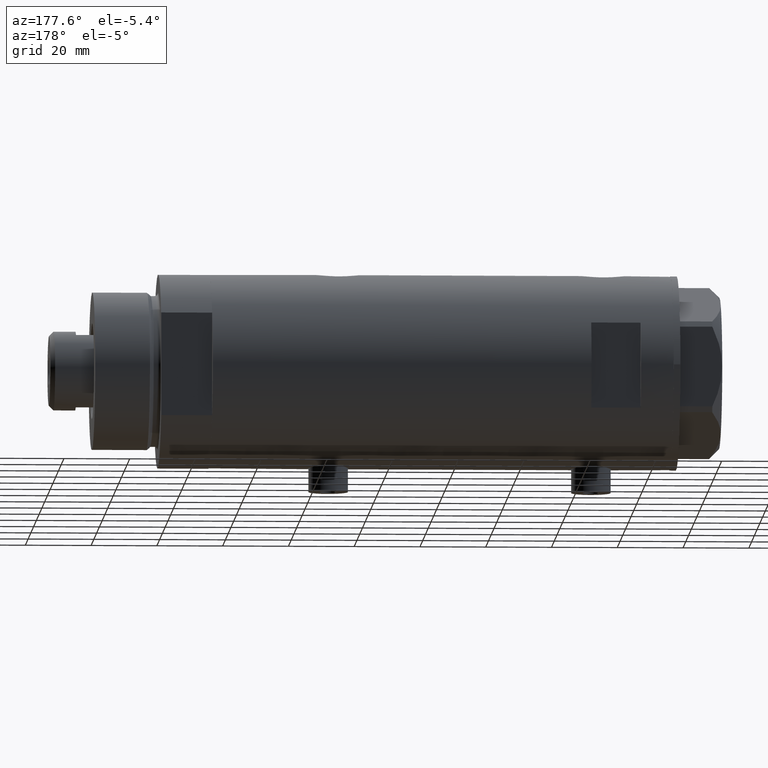
[diagram: clean part render]
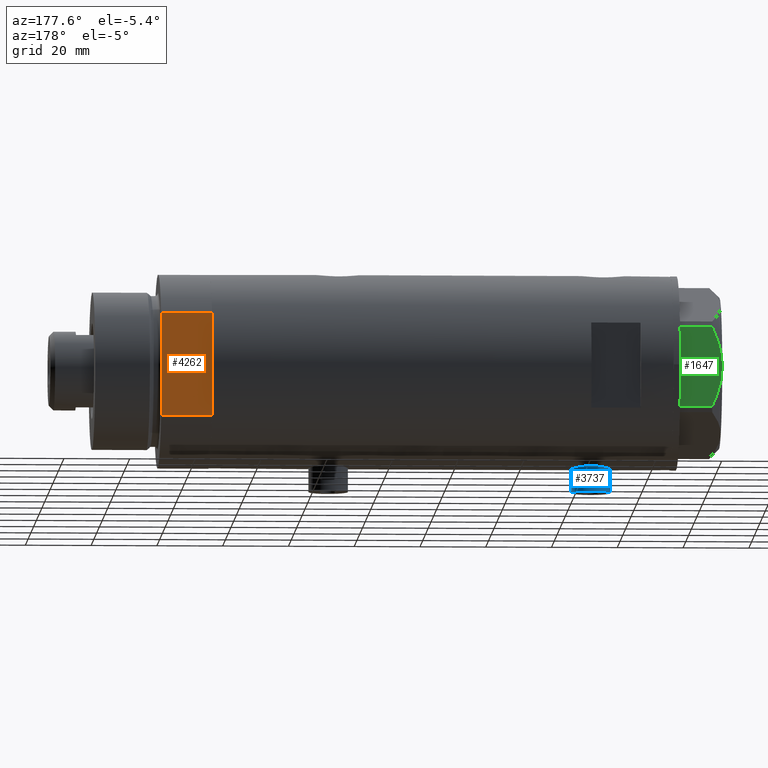
[diagram: same view with three faces highlighted in distinct colors, each labeled with its STEP entity id]
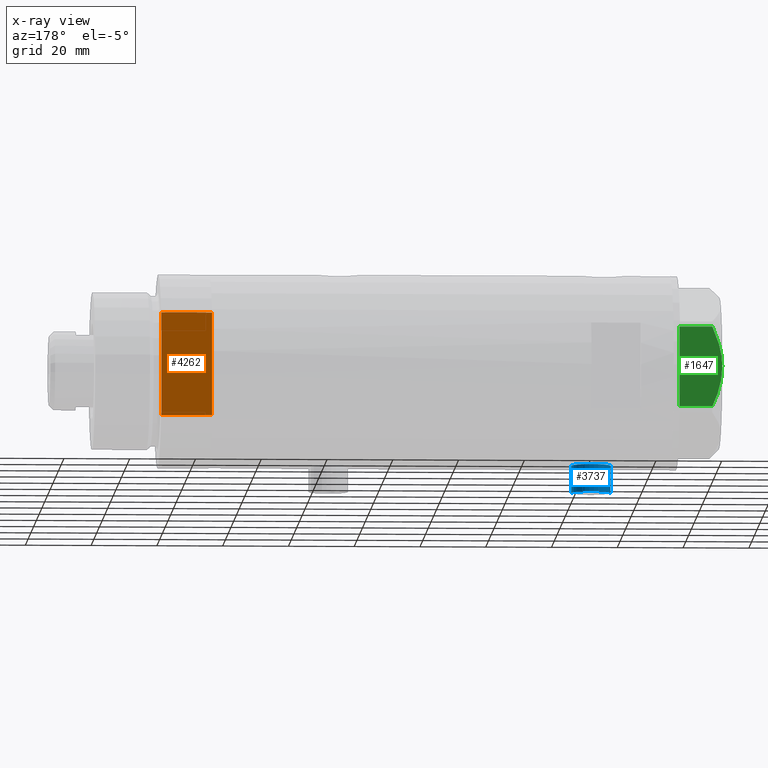
[diagram: x-ray of the same camera — body ghosted, the three highlighted faces saturated]
A machine part, auxiliary view with three faces highlighted in distinct colors.
The next image is the same camera in x-ray (body ghosted, the three faces saturated) — at least one of them is partly hidden behind the body in this view.
Their STEP definitions:

[orange] entity #4262 — the highlighted planar face has unit normal (0, -1, -0).
#135 = VERTEX_POINT ( 'NONE', #300 ) ;
#300 = CARTESIAN_POINT ( 'NONE',  ( -15.66045976336583045, 25.00000000000000000, 15.50000000000000000 ) ) ;
#348 = DIRECTION ( 'NONE',  ( -0.000000000000000000, -0.000000000000000000, 1.000000000000000000 ) ) ;
#384 = EDGE_CURVE ( 'NONE', #1692, #1071, #1586, .T. ) ;
#404 = DIRECTION ( 'NONE',  ( 1.000000000000000000, 0.000000000000000000, 0.000000000000000000 ) ) ;
#438 = FACE_OUTER_BOUND ( 'NONE', #2635, .T. ) ;
#636 = VECTOR ( 'NONE', #878, 1000.000000000000000 ) ;
#771 = CARTESIAN_POINT ( 'NONE',  ( 15.66045976336582690, 25.00000000000000000, 0.000000000000000000 ) ) ;
#792 = LINE ( 'NONE', #1276, #636 ) ;
#878 = DIRECTION ( 'NONE',  ( 1.000000000000000000, 0.000000000000000000, 0.000000000000000000 ) ) ;
#932 = DIRECTION ( 'NONE',  ( 0.000000000000000000, -1.000000000000000000, 0.000000000000000000 ) ) ;
#939 = VECTOR ( 'NONE', #348, 1000.000000000000000 ) ;
#1071 = VERTEX_POINT ( 'NONE', #771 ) ;
#1094 = LINE ( 'NONE', #2555, #1529 ) ;
#1276 = CARTESIAN_POINT ( 'NONE',  ( -15.66045976336583401, 25.00000000000000000, 0.000000000000000000 ) ) ;
#1529 = VECTOR ( 'NONE', #3311, 1000.000000000000000 ) ;
#1586 = LINE ( 'NONE', #2032, #2961 ) ;
#1692 = VERTEX_POINT ( 'NONE', #2892 ) ;
#1814 = ORIENTED_EDGE ( 'NONE', *, *, #2816, .F. ) ;
#1854 = LINE ( 'NONE', #2181, #939 ) ;
#1971 = VECTOR ( 'NONE', #404, 1000.000000000000000 ) ;
#2032 = CARTESIAN_POINT ( 'NONE',  ( -15.66045976336583401, 25.00000000000000000, 0.000000000000000000 ) ) ;
#2163 = EDGE_CURVE ( 'NONE', #4075, #135, #1094, .T. ) ;
#2181 = CARTESIAN_POINT ( 'NONE',  ( 15.66045976336583401, 25.00000000000000000, 0.000000000000000000 ) ) ;
#2185 = AXIS2_PLACEMENT_3D ( 'NONE', #2270, #932, #3522 ) ;
#2270 = CARTESIAN_POINT ( 'NONE',  ( -15.66045976336583401, 25.00000000000000000, 0.000000000000000000 ) ) ;
#2555 = CARTESIAN_POINT ( 'NONE',  ( -15.66045976336583401, 25.00000000000000000, 0.000000000000000000 ) ) ;
#2621 = EDGE_CURVE ( 'NONE', #135, #2909, #3378, .T. ) ;
#2635 = EDGE_LOOP ( 'NONE', ( #3808, #3798, #4368, #4411, #1814, #2798 ) ) ;
#2798 = ORIENTED_EDGE ( 'NONE', *, *, #2163, .T. ) ;
#2816 = EDGE_CURVE ( 'NONE', #4075, #2977, #3892, .T. ) ;
#2892 = CARTESIAN_POINT ( 'NONE',  ( 7.141428428542853091, 25.00000000000000000, 0.000000000000000000 ) ) ;
#2909 = VERTEX_POINT ( 'NONE', #3863 ) ;
#2961 = VECTOR ( 'NONE', #3046, 1000.000000000000000 ) ;
#2977 = VERTEX_POINT ( 'NONE', #3347 ) ;
#3030 = VECTOR ( 'NONE', #4298, 1000.000000000000000 ) ;
#3046 = DIRECTION ( 'NONE',  ( 1.000000000000000000, 0.000000000000000000, 0.000000000000000000 ) ) ;
#3060 = EDGE_CURVE ( 'NONE', #1071, #2909, #1854, .T. ) ;
#3258 = CARTESIAN_POINT ( 'NONE',  ( -15.66045976336583401, 25.00000000000000000, 0.000000000000000000 ) ) ;
#3311 = DIRECTION ( 'NONE',  ( -0.000000000000000000, -0.000000000000000000, 1.000000000000000000 ) ) ;
#3347 = CARTESIAN_POINT ( 'NONE',  ( -7.141428428542853091, 25.00000000000000000, 0.000000000000000000 ) ) ;
#3378 = LINE ( 'NONE', #4063, #1971 ) ;
#3522 = DIRECTION ( 'NONE',  ( 0.000000000000000000, -0.000000000000000000, -1.000000000000000000 ) ) ;
#3585 = CARTESIAN_POINT ( 'NONE',  ( -15.66045976336583401, 25.00000000000000000, 0.000000000000000000 ) ) ;
#3632 = EDGE_CURVE ( 'NONE', #2977, #1692, #792, .T. ) ;
#3798 = ORIENTED_EDGE ( 'NONE', *, *, #3060, .F. ) ;
#3808 = ORIENTED_EDGE ( 'NONE', *, *, #2621, .T. ) ;
#3821 = PLANE ( 'NONE',  #2185 ) ;
#3863 = CARTESIAN_POINT ( 'NONE',  ( 15.66045976336583045, 25.00000000000000000, 15.50000000000000000 ) ) ;
#3892 = LINE ( 'NONE', #3585, #3030 ) ;
#4063 = CARTESIAN_POINT ( 'NONE',  ( -15.66045976336583401, 25.00000000000000000, 15.50000000000000000 ) ) ;
#4075 = VERTEX_POINT ( 'NONE', #3258 ) ;
#4262 = ADVANCED_FACE ( 'NONE', ( #438 ), #3821, .F. ) ;
#4298 = DIRECTION ( 'NONE',  ( 1.000000000000000000, 0.000000000000000000, 0.000000000000000000 ) ) ;
#4368 = ORIENTED_EDGE ( 'NONE', *, *, #384, .F. ) ;
#4411 = ORIENTED_EDGE ( 'NONE', *, *, #3632, .F. ) ;

[blue] entity #3737 — the highlighted cylindrical surface (edge-blend (fillet) strip) has radius 6 mm, axis along (0, 0, 1).
#54 = DIRECTION ( 'NONE',  ( 1.000000000000000000, -0.000000000000000000, -0.000000000000000000 ) ) ;
#64 = DIRECTION ( 'NONE',  ( -1.000000000000000000, 0.000000000000000000, 0.000000000000000000 ) ) ;
#260 = VECTOR ( 'NONE', #4591, 1000.000000000000000 ) ;
#383 = ORIENTED_EDGE ( 'NONE', *, *, #3415, .F. ) ;
#389 = DIRECTION ( 'NONE',  ( 0.000000000000000000, 0.000000000000000000, 1.000000000000000000 ) ) ;
#453 = EDGE_CURVE ( 'NONE', #4774, #3208, #2724, .T. ) ;
#518 = CYLINDRICAL_SURFACE ( 'NONE', #2858, 5.999999999999998224 ) ;
#537 = CARTESIAN_POINT ( 'NONE',  ( -36.60000000000000142, 0.000000000000000000, 40.09999999999999432 ) ) ;
#776 = EDGE_CURVE ( 'NONE', #3826, #3208, #1891, .T. ) ;
#1158 = CARTESIAN_POINT ( 'NONE',  ( -28.30000000000000071, 7.347880794884107903E-16, 52.09999999999999432 ) ) ;
#1211 = ORIENTED_EDGE ( 'NONE', *, *, #3445, .T. ) ;
#1334 = VECTOR ( 'NONE', #2992, 1000.000000000000000 ) ;
#1558 = DIRECTION ( 'NONE',  ( 0.000000000000000000, 0.000000000000000000, 1.000000000000000000 ) ) ;
#1665 = LINE ( 'NONE', #3823, #1334 ) ;
#1841 = ORIENTED_EDGE ( 'NONE', *, *, #776, .T. ) ;
#1890 = CARTESIAN_POINT ( 'NONE',  ( -36.60000000000000142, 0.000000000000000000, 46.09999999999999432 ) ) ;
#1891 = CIRCLE ( 'NONE', #2880, 5.999999999999998224 ) ;
#1989 = DIRECTION ( 'NONE',  ( 0.000000000000000000, 0.000000000000000000, -1.000000000000000000 ) ) ;
#2092 = CARTESIAN_POINT ( 'NONE',  ( -36.60000000000000142, 7.347880794884107903E-16, 52.09999999999999432 ) ) ;
#2401 = AXIS2_PLACEMENT_3D ( 'NONE', #1890, #3844, #389 ) ;
#2724 = LINE ( 'NONE', #537, #260 ) ;
#2858 = AXIS2_PLACEMENT_3D ( 'NONE', #3376, #54, #1989 ) ;
#2877 = CARTESIAN_POINT ( 'NONE',  ( -36.60000000000000142, 0.000000000000000000, 40.09999999999999432 ) ) ;
#2880 = AXIS2_PLACEMENT_3D ( 'NONE', #3385, #64, #1558 ) ;
#2906 = ORIENTED_EDGE ( 'NONE', *, *, #453, .F. ) ;
#2992 = DIRECTION ( 'NONE',  ( 1.000000000000000000, -0.000000000000000000, -0.000000000000000000 ) ) ;
#3208 = VERTEX_POINT ( 'NONE', #4491 ) ;
#3376 = CARTESIAN_POINT ( 'NONE',  ( -36.60000000000000142, 0.000000000000000000, 46.09999999999999432 ) ) ;
#3385 = CARTESIAN_POINT ( 'NONE',  ( -28.30000000000000071, 0.000000000000000000, 46.09999999999999432 ) ) ;
#3415 = EDGE_CURVE ( 'NONE', #3588, #4774, #3861, .T. ) ;
#3445 = EDGE_CURVE ( 'NONE', #3588, #3826, #1665, .T. ) ;
#3588 = VERTEX_POINT ( 'NONE', #2092 ) ;
#3720 = EDGE_LOOP ( 'NONE', ( #383, #1211, #1841, #2906 ) ) ;
#3737 = ADVANCED_FACE ( 'NONE', ( #4168 ), #518, .T. ) ;
#3823 = CARTESIAN_POINT ( 'NONE',  ( -36.60000000000000142, 7.347880794884111847E-16, 52.09999999999999432 ) ) ;
#3826 = VERTEX_POINT ( 'NONE', #1158 ) ;
#3844 = DIRECTION ( 'NONE',  ( -1.000000000000000000, 0.000000000000000000, 0.000000000000000000 ) ) ;
#3861 = CIRCLE ( 'NONE', #2401, 5.999999999999998224 ) ;
#4168 = FACE_OUTER_BOUND ( 'NONE', #3720, .T. ) ;
#4491 = CARTESIAN_POINT ( 'NONE',  ( -28.30000000000000071, 0.000000000000000000, 40.09999999999999432 ) ) ;
#4591 = DIRECTION ( 'NONE',  ( 1.000000000000000000, -0.000000000000000000, -0.000000000000000000 ) ) ;
#4774 = VERTEX_POINT ( 'NONE', #2877 ) ;

[green] entity #1647 — the highlighted planar face has unit normal (0, -1, 0).
#19 = CARTESIAN_POINT ( 'NONE',  ( 23.00000000000008527, -13.27905619136115867, 0.000000000000000000 ) ) ;
#79 = CARTESIAN_POINT ( 'NONE',  ( 22.99999999999984723, 10.22738952213813590, 10.83247031367476687 ) ) ;
#145 = LINE ( 'NONE', #19, #2781 ) ;
#146 = CARTESIAN_POINT ( 'NONE',  ( 22.99999999999987210, 7.253003311474555126, 11.90327681034763430 ) ) ;
#162 = CARTESIAN_POINT ( 'NONE',  ( 22.99999999999982236, 12.15905619136166038, 9.983800287807609308 ) ) ;
#299 = CARTESIAN_POINT ( 'NONE',  ( 23.00000000000007461, -12.15905619136117721, 13.00000000000000000 ) ) ;
#456 = B_SPLINE_CURVE_WITH_KNOTS ( 'NONE', 3,
 ( #2895, #4369, #3313, #2863, #2150, #1770, #1513, #3622, #2969, #1072 ),
 .UNSPECIFIED., .F., .F.,
 ( 4, 2, 2, 2, 4 ),
 ( 0.03516523594057416324, 0.03831677594541234994, 0.03989254594783143981, 0.04146831595025052969, 0.04777139595992689614 ),
 .UNSPECIFIED. ) ;
#476 = CARTESIAN_POINT ( 'NONE',  ( 22.99999999999994671, 0.5295934231899315225, 13.00000000000009770 ) ) ;
#481 = ORIENTED_EDGE ( 'NONE', *, *, #3024, .T. ) ;
#583 = FACE_OUTER_BOUND ( 'NONE', #881, .T. ) ;
#801 = CARTESIAN_POINT ( 'NONE',  ( 22.99999999999995026, 2.373657066004705010E-13, 13.00000000000000000 ) ) ;
#846 = DIRECTION ( 'NONE',  ( 0.000000000000000000, 0.000000000000000000, 1.000000000000000000 ) ) ;
#863 = VERTEX_POINT ( 'NONE', #3132 ) ;
#881 = EDGE_LOOP ( 'NONE', ( #3250, #481, #4217, #2351, #1726 ) ) ;
#888 = CARTESIAN_POINT ( 'NONE',  ( 22.99999999999992184, 2.643615312305319875, 12.85430456063626714 ) ) ;
#992 = PLANE ( 'NONE',  #1207 ) ;
#1072 = CARTESIAN_POINT ( 'NONE',  ( 22.99999999999995026, 2.373657066004705010E-13, 13.00000000000000000 ) ) ;
#1148 = VERTEX_POINT ( 'NONE', #162 ) ;
#1175 = CARTESIAN_POINT ( 'NONE',  ( 22.99999999999982236, 12.15905619136166571, 13.00000000000000000 ) ) ;
#1207 = AXIS2_PLACEMENT_3D ( 'NONE', #1768, #3230, #1411 ) ;
#1256 = VECTOR ( 'NONE', #846, 1000.000000000000000 ) ;
#1285 = DIRECTION ( 'NONE',  ( -1.032024811306395780E-14, 1.000000000000000000, 0.000000000000000000 ) ) ;
#1397 = CARTESIAN_POINT ( 'NONE',  ( 23.00000000000007461, -12.15905619136117721, 0.000000000000000000 ) ) ;
#1411 = DIRECTION ( 'NONE',  ( 1.032024811306395780E-14, -1.000000000000000000, 0.000000000000000000 ) ) ;
#1513 = CARTESIAN_POINT ( 'NONE',  ( 23.00000000000001421, -6.734330413511261604, 12.03938974125266448 ) ) ;
#1647 = ADVANCED_FACE ( 'NONE', ( #583 ), #992, .F. ) ;
#1667 = CARTESIAN_POINT ( 'NONE',  ( 22.99999999999984368, 11.20155944044835472, 10.42110268263274264 ) ) ;
#1726 = ORIENTED_EDGE ( 'NONE', *, *, #2191, .F. ) ;
#1768 = CARTESIAN_POINT ( 'NONE',  ( 23.00000000000008527, -13.27905619136115867, 13.00000000000000000 ) ) ;
#1770 = CARTESIAN_POINT ( 'NONE',  ( 23.00000000000002132, -7.239756182922042704, 11.89218606342284978 ) ) ;
#1931 = CARTESIAN_POINT ( 'NONE',  ( 22.99999999999995026, 2.373657066004705010E-13, 13.00000000000000000 ) ) ;
#2137 = LINE ( 'NONE', #299, #4480 ) ;
#2150 = CARTESIAN_POINT ( 'NONE',  ( 23.00000000000003197, -8.246028007352199651, 11.57113180864690705 ) ) ;
#2191 = EDGE_CURVE ( 'NONE', #4362, #1148, #4693, .T. ) ;
#2309 = CARTESIAN_POINT ( 'NONE',  ( 22.99999999999985434, 9.734726261263476843, 11.02892470009566139 ) ) ;
#2351 = ORIENTED_EDGE ( 'NONE', *, *, #3921, .T. ) ;
#2690 = CARTESIAN_POINT ( 'NONE',  ( 22.99999999999993960, 1.063773509315898647, 12.98143808360683060 ) ) ;
#2781 = VECTOR ( 'NONE', #1285, 1000.000000000000000 ) ;
#2863 = CARTESIAN_POINT ( 'NONE',  ( 23.00000000000004263, -8.748091966971225375, 11.39681897828457124 ) ) ;
#2895 = CARTESIAN_POINT ( 'NONE',  ( 23.00000000000007461, -12.15905619136117544, 9.983800287807614637 ) ) ;
#2969 = CARTESIAN_POINT ( 'NONE',  ( 22.99999999999996447, -2.122900714017910584, 13.00000000000008882 ) ) ;
#3024 = EDGE_CURVE ( 'NONE', #863, #4549, #2137, .T. ) ;
#3033 = CARTESIAN_POINT ( 'NONE',  ( 22.99999999999986500, 8.252113629125442884, 11.58164206268022056 ) ) ;
#3129 = CARTESIAN_POINT ( 'NONE',  ( 22.99999999999982236, 12.15905619136166038, 9.983800287807609308 ) ) ;
#3132 = CARTESIAN_POINT ( 'NONE',  ( 23.00000000000007461, -12.15905619136117544, 9.983800287807614637 ) ) ;
#3135 = CARTESIAN_POINT ( 'NONE',  ( 22.99999999999982236, 12.15905619136166571, 0.000000000000000000 ) ) ;
#3230 = DIRECTION ( 'NONE',  ( -1.000000000000000000, -1.032024811306395780E-14, 0.000000000000000000 ) ) ;
#3250 = ORIENTED_EDGE ( 'NONE', *, *, #4129, .F. ) ;
#3313 = CARTESIAN_POINT ( 'NONE',  ( 23.00000000000005684, -10.23890159976106240, 10.84081242829091529 ) ) ;
#3401 = CARTESIAN_POINT ( 'NONE',  ( 22.99999999999992539, 2.119709279062088836, 12.90853521217320043 ) ) ;
#3422 = EDGE_CURVE ( 'NONE', #4549, #4055, #145, .T. ) ;
#3423 = CARTESIAN_POINT ( 'NONE',  ( 22.99999999999990763, 4.203926054642130872, 12.64168122312251263 ) ) ;
#3610 = DIRECTION ( 'NONE',  ( 0.000000000000000000, 0.000000000000000000, -1.000000000000000000 ) ) ;
#3622 = CARTESIAN_POINT ( 'NONE',  ( 22.99999999999999289, -4.194757081058820170, 12.70300035152520479 ) ) ;
#3777 = CARTESIAN_POINT ( 'NONE',  ( 22.99999999999982947, 11.68282849742354301, 10.20637235269540888 ) ) ;
#3921 = EDGE_CURVE ( 'NONE', #4055, #1148, #4556, .T. ) ;
#4055 = VERTEX_POINT ( 'NONE', #3135 ) ;
#4129 = EDGE_CURVE ( 'NONE', #863, #4362, #456, .T. ) ;
#4217 = ORIENTED_EDGE ( 'NONE', *, *, #3422, .T. ) ;
#4362 = VERTEX_POINT ( 'NONE', #801 ) ;
#4369 = CARTESIAN_POINT ( 'NONE',  ( 23.00000000000006750, -11.20825071633899483, 10.42817330637845608 ) ) ;
#4480 = VECTOR ( 'NONE', #3610, 1000.000000000000000 ) ;
#4528 = CARTESIAN_POINT ( 'NONE',  ( 22.99999999999990052, 5.228918809624289565, 12.43333703384985256 ) ) ;
#4549 = VERTEX_POINT ( 'NONE', #1397 ) ;
#4556 = LINE ( 'NONE', #1175, #1256 ) ;
#4693 = B_SPLINE_CURVE_WITH_KNOTS ( 'NONE', 3,
 ( #1931, #476, #2690, #3401, #888, #3423, #4528, #146, #3033, #2309, #79, #1667, #3777, #3129 ),
 .UNSPECIFIED., .F., .F.,
 ( 4, 2, 2, 2, 2, 2, 4 ),
 ( 0.04777139595992689614, 0.04934380568070229761, 0.05091621540147769215, 0.05406103484302849510, 0.05720585428457929111, 0.05877826400535468565, 0.06035067372613008713 ),
 .UNSPECIFIED. ) ;